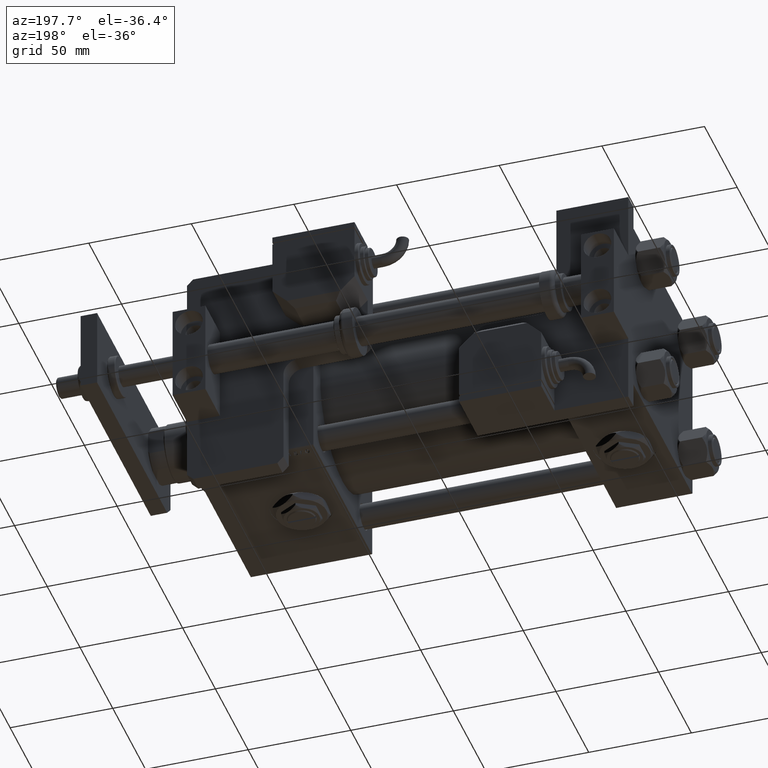
[diagram: clean part render]
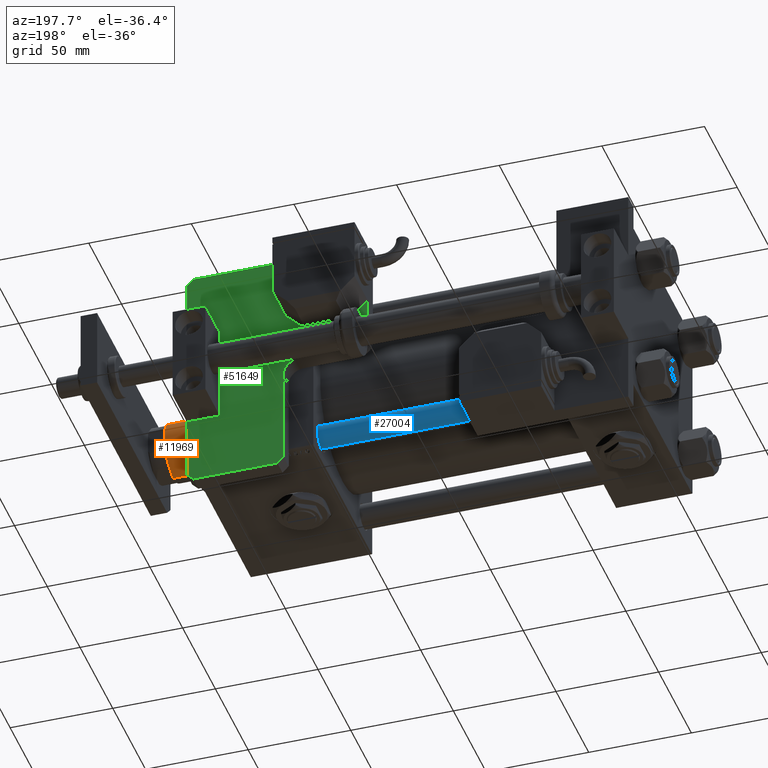
[diagram: same view with three faces highlighted in distinct colors, each labeled with its STEP entity id]
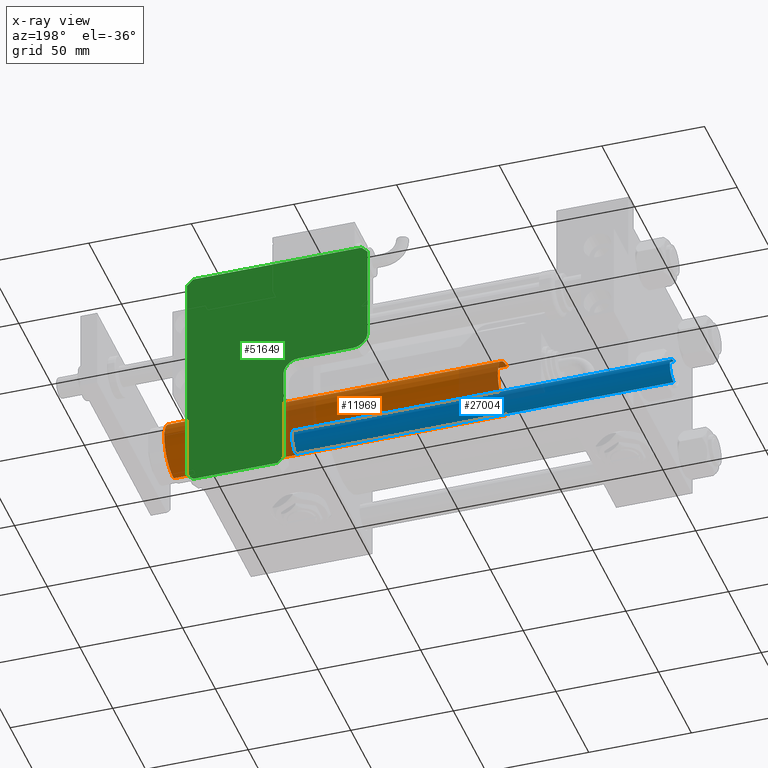
[diagram: x-ray of the same camera — body ghosted, the three highlighted faces saturated]
A machine part, auxiliary view with three faces highlighted in distinct colors.
The next image is the same camera in x-ray (body ghosted, the three faces saturated) — at least one of them is partly hidden behind the body in this view.
Their STEP definitions:

[orange] entity #11969 — the highlighted cylindrical surface (edge-blend (fillet) strip) has radius 14 mm, axis along (-1, 0, 0).
#1002 = CARTESIAN_POINT ( 'NONE',  ( 14.00000000000000000, 1.714505518806294638E-15, 39.00000000000000000 ) ) ;
#1418 = VERTEX_POINT ( 'NONE', #38723 ) ;
#7903 = DIRECTION ( 'NONE',  ( 1.000000000000000000, 0.000000000000000000, 0.000000000000000000 ) ) ;
#7947 = DIRECTION ( 'NONE',  ( -0.000000000000000000, -0.000000000000000000, -1.000000000000000000 ) ) ;
#8208 = VECTOR ( 'NONE', #11063, 1000.000000000000000 ) ;
#8893 = VECTOR ( 'NONE', #27337, 1000.000000000000000 ) ;
#11063 = DIRECTION ( 'NONE',  ( -0.000000000000000000, -0.000000000000000000, -1.000000000000000000 ) ) ;
#11219 = ORIENTED_EDGE ( 'NONE', *, *, #50561, .T. ) ;
#11969 = ADVANCED_FACE ( 'NONE', ( #15951 ), #33865, .T. ) ;
#14422 = CARTESIAN_POINT ( 'NONE',  ( 14.00000000000000000, 1.714505518806294638E-15, 202.0000000000000000 ) ) ;
#14473 = VERTEX_POINT ( 'NONE', #30945 ) ;
#15951 = FACE_OUTER_BOUND ( 'NONE', #50413, .T. ) ;
#18627 = DIRECTION ( 'NONE',  ( 1.000000000000000000, 0.000000000000000000, 0.000000000000000000 ) ) ;
#22952 = ORIENTED_EDGE ( 'NONE', *, *, #37506, .T. ) ;
#24837 = LINE ( 'NONE', #43321, #8208 ) ;
#25923 = VERTEX_POINT ( 'NONE', #1002 ) ;
#27337 = DIRECTION ( 'NONE',  ( -0.000000000000000000, -0.000000000000000000, -1.000000000000000000 ) ) ;
#27624 = LINE ( 'NONE', #14422, #8893 ) ;
#29927 = CARTESIAN_POINT ( 'NONE',  ( 0.000000000000000000, 0.000000000000000000, 39.00000000000000000 ) ) ;
#29997 = ORIENTED_EDGE ( 'NONE', *, *, #34548, .F. ) ;
#30414 = AXIS2_PLACEMENT_3D ( 'NONE', #57986, #40397, #18627 ) ;
#30945 = CARTESIAN_POINT ( 'NONE',  ( -14.00000000000000000, 0.000000000000000000, 39.00000000000000000 ) ) ;
#33865 = CYLINDRICAL_SURFACE ( 'NONE', #44735, 14.00000000000000000 ) ;
#34548 = EDGE_CURVE ( 'NONE', #41978, #25923, #27624, .T. ) ;
#36319 = CARTESIAN_POINT ( 'NONE',  ( 14.00000000000000000, 1.714505518806294638E-15, 201.5000000000000284 ) ) ;
#36989 = CIRCLE ( 'NONE', #30414, 14.00000000000000000 ) ;
#37506 = EDGE_CURVE ( 'NONE', #41978, #1418, #36989, .T. ) ;
#38723 = CARTESIAN_POINT ( 'NONE',  ( -14.00000000000000000, 0.000000000000000000, 201.5000000000000284 ) ) ;
#38860 = EDGE_CURVE ( 'NONE', #14473, #25923, #52040, .T. ) ;
#39357 = DIRECTION ( 'NONE',  ( -1.000000000000000000, 0.000000000000000000, 0.000000000000000000 ) ) ;
#40397 = DIRECTION ( 'NONE',  ( 0.000000000000000000, 0.000000000000000000, -1.000000000000000000 ) ) ;
#41873 = ORIENTED_EDGE ( 'NONE', *, *, #38860, .T. ) ;
#41978 = VERTEX_POINT ( 'NONE', #36319 ) ;
#42665 = AXIS2_PLACEMENT_3D ( 'NONE', #29927, #42853, #7903 ) ;
#42853 = DIRECTION ( 'NONE',  ( 0.000000000000000000, 0.000000000000000000, 1.000000000000000000 ) ) ;
#43321 = CARTESIAN_POINT ( 'NONE',  ( -14.00000000000000000, 0.000000000000000000, 202.0000000000000000 ) ) ;
#44735 = AXIS2_PLACEMENT_3D ( 'NONE', #48142, #7947, #39357 ) ;
#48142 = CARTESIAN_POINT ( 'NONE',  ( 0.000000000000000000, 0.000000000000000000, 202.0000000000000000 ) ) ;
#50413 = EDGE_LOOP ( 'NONE', ( #29997, #22952, #11219, #41873 ) ) ;
#50561 = EDGE_CURVE ( 'NONE', #1418, #14473, #24837, .T. ) ;
#52040 = CIRCLE ( 'NONE', #42665, 14.00000000000000000 ) ;
#57986 = CARTESIAN_POINT ( 'NONE',  ( 0.000000000000000000, 0.000000000000000000, 201.5000000000000284 ) ) ;

[blue] entity #27004 — the highlighted cylindrical surface (edge-blend (fillet) strip) has radius 6 mm, axis along (1, -0, -0).
#2108 = CARTESIAN_POINT ( 'NONE',  ( 0.000000000000000000, 0.000000000000000000, 185.0000000000000000 ) ) ;
#7085 = FACE_OUTER_BOUND ( 'NONE', #16296, .T. ) ;
#7306 = LINE ( 'NONE', #25476, #46665 ) ;
#8545 = CARTESIAN_POINT ( 'NONE',  ( 0.000000000000000000, 0.000000000000000000, 184.5000000000000000 ) ) ;
#14928 = CARTESIAN_POINT ( 'NONE',  ( 6.000000000000000888, 7.347880794884120722E-16, 184.5000000000000000 ) ) ;
#14997 = CARTESIAN_POINT ( 'NONE',  ( -6.000000000000000888, 0.000000000000000000, 0.5000000000000281997 ) ) ;
#15429 = EDGE_CURVE ( 'NONE', #47598, #19432, #40045, .T. ) ;
#16068 = ORIENTED_EDGE ( 'NONE', *, *, #44967, .F. ) ;
#16296 = EDGE_LOOP ( 'NONE', ( #44749, #25152, #37346, #16068 ) ) ;
#16631 = VERTEX_POINT ( 'NONE', #24294 ) ;
#18784 = LINE ( 'NONE', #36699, #45430 ) ;
#19432 = VERTEX_POINT ( 'NONE', #14928 ) ;
#22887 = DIRECTION ( 'NONE',  ( 1.000000000000000000, 0.000000000000000000, 0.000000000000000000 ) ) ;
#24294 = CARTESIAN_POINT ( 'NONE',  ( 6.000000000000000888, 7.347880794884120722E-16, 0.5000000000000281997 ) ) ;
#25152 = ORIENTED_EDGE ( 'NONE', *, *, #54179, .T. ) ;
#25476 = CARTESIAN_POINT ( 'NONE',  ( 6.000000000000000888, 7.347880794884120722E-16, 185.0000000000000000 ) ) ;
#26045 = DIRECTION ( 'NONE',  ( -0.000000000000000000, -0.000000000000000000, -1.000000000000000000 ) ) ;
#27004 = ADVANCED_FACE ( 'NONE', ( #7085 ), #33509, .T. ) ;
#29627 = EDGE_CURVE ( 'NONE', #16631, #48671, #44280, .T. ) ;
#31987 = DIRECTION ( 'NONE',  ( 0.000000000000000000, 0.000000000000000000, -1.000000000000000000 ) ) ;
#33509 = CYLINDRICAL_SURFACE ( 'NONE', #47894, 6.000000000000000888 ) ;
#33795 = DIRECTION ( 'NONE',  ( -1.000000000000000000, 0.000000000000000000, 0.000000000000000000 ) ) ;
#33997 = AXIS2_PLACEMENT_3D ( 'NONE', #53259, #56794, #47988 ) ;
#36699 = CARTESIAN_POINT ( 'NONE',  ( -6.000000000000000888, 0.000000000000000000, 185.0000000000000000 ) ) ;
#37346 = ORIENTED_EDGE ( 'NONE', *, *, #29627, .T. ) ;
#40045 = CIRCLE ( 'NONE', #49400, 6.000000000000000888 ) ;
#42827 = CARTESIAN_POINT ( 'NONE',  ( -6.000000000000000888, 0.000000000000000000, 184.5000000000000000 ) ) ;
#44280 = CIRCLE ( 'NONE', #33997, 6.000000000000000888 ) ;
#44749 = ORIENTED_EDGE ( 'NONE', *, *, #15429, .T. ) ;
#44967 = EDGE_CURVE ( 'NONE', #47598, #48671, #18784, .T. ) ;
#45430 = VECTOR ( 'NONE', #54597, 1000.000000000000000 ) ;
#46665 = VECTOR ( 'NONE', #26045, 1000.000000000000000 ) ;
#47598 = VERTEX_POINT ( 'NONE', #42827 ) ;
#47894 = AXIS2_PLACEMENT_3D ( 'NONE', #2108, #56666, #33795 ) ;
#47988 = DIRECTION ( 'NONE',  ( 1.000000000000000000, 0.000000000000000000, 0.000000000000000000 ) ) ;
#48671 = VERTEX_POINT ( 'NONE', #14997 ) ;
#49400 = AXIS2_PLACEMENT_3D ( 'NONE', #8545, #31987, #22887 ) ;
#53259 = CARTESIAN_POINT ( 'NONE',  ( 0.000000000000000000, 0.000000000000000000, 0.5000000000000281997 ) ) ;
#54179 = EDGE_CURVE ( 'NONE', #19432, #16631, #7306, .T. ) ;
#54597 = DIRECTION ( 'NONE',  ( -0.000000000000000000, -0.000000000000000000, -1.000000000000000000 ) ) ;
#56666 = DIRECTION ( 'NONE',  ( -0.000000000000000000, -0.000000000000000000, -1.000000000000000000 ) ) ;
#56794 = DIRECTION ( 'NONE',  ( -0.000000000000000000, -0.000000000000000000, 1.000000000000000000 ) ) ;

[green] entity #51649 — the highlighted planar face has unit normal (0, 1, 0).
#1150 = CARTESIAN_POINT ( 'NONE',  ( 3.000000000000002665, 88.00000000000000000, 8.000000000000000000 ) ) ;
#1599 = EDGE_CURVE ( 'NONE', #41694, #25712, #17824, .T. ) ;
#2186 = FACE_OUTER_BOUND ( 'NONE', #8730, .T. ) ;
#2268 = AXIS2_PLACEMENT_3D ( 'NONE', #51576, #24871, #42782 ) ;
#2396 = EDGE_CURVE ( 'NONE', #25712, #24167, #11799, .T. ) ;
#3154 = DIRECTION ( 'NONE',  ( 0.000000000000000000, -1.000000000000000000, 0.000000000000000000 ) ) ;
#3223 = ORIENTED_EDGE ( 'NONE', *, *, #49533, .T. ) ;
#3404 = CARTESIAN_POINT ( 'NONE',  ( 114.9999999999999858, 0.000000000000000000, 8.000000000000000000 ) ) ;
#3569 = ORIENTED_EDGE ( 'NONE', *, *, #45041, .T. ) ;
#3942 = ORIENTED_EDGE ( 'NONE', *, *, #48284, .T. ) ;
#4015 = CARTESIAN_POINT ( 'NONE',  ( 56.99999999999999289, 80.49999999999997158, 8.000000000000000000 ) ) ;
#4275 = VECTOR ( 'NONE', #14391, 1000.000000000000114 ) ;
#4278 = VERTEX_POINT ( 'NONE', #56370 ) ;
#5356 = VECTOR ( 'NONE', #10592, 1000.000000000000114 ) ;
#6315 = VERTEX_POINT ( 'NONE', #18909 ) ;
#7344 = AXIS2_PLACEMENT_3D ( 'NONE', #51770, #15966, #11574 ) ;
#7668 = ORIENTED_EDGE ( 'NONE', *, *, #32166, .T. ) ;
#8730 = EDGE_LOOP ( 'NONE', ( #24854, #9539, #3569, #9942, #7668, #11004, #34242, #41177, #3942, #3223, #25783, #25422 ) ) ;
#8744 = EDGE_CURVE ( 'NONE', #19118, #56921, #55475, .T. ) ;
#9066 = VERTEX_POINT ( 'NONE', #28938 ) ;
#9539 = ORIENTED_EDGE ( 'NONE', *, *, #2396, .T. ) ;
#9713 = DIRECTION ( 'NONE',  ( 0.7071067811865441310, -0.7071067811865507924, -0.000000000000000000 ) ) ;
#9942 = ORIENTED_EDGE ( 'NONE', *, *, #31426, .T. ) ;
#10008 = CARTESIAN_POINT ( 'NONE',  ( 1.500000000000001332, 1.499999999999987566, 8.000000000000000000 ) ) ;
#10018 = DIRECTION ( 'NONE',  ( 1.000000000000000000, 0.000000000000000000, 0.000000000000000000 ) ) ;
#10592 = DIRECTION ( 'NONE',  ( 0.7071067811865507924, 0.7071067811865441310, -0.000000000000000000 ) ) ;
#10904 = DIRECTION ( 'NONE',  ( -0.000000000000000000, 0.000000000000000000, -1.000000000000000000 ) ) ;
#11004 = ORIENTED_EDGE ( 'NONE', *, *, #8744, .T. ) ;
#11504 = DIRECTION ( 'NONE',  ( -0.7071067811865507924, -0.7071067811865441310, -0.000000000000000000 ) ) ;
#11574 = DIRECTION ( 'NONE',  ( 1.000000000000000000, 0.000000000000000000, -0.000000000000000000 ) ) ;
#11799 = LINE ( 'NONE', #33218, #37932 ) ;
#12141 = VERTEX_POINT ( 'NONE', #4015 ) ;
#12182 = CARTESIAN_POINT ( 'NONE',  ( 56.99999999999999289, 54.49999999999998579, 8.000000000000000000 ) ) ;
#12392 = EDGE_CURVE ( 'NONE', #52144, #12141, #36608, .T. ) ;
#12910 = VECTOR ( 'NONE', #18994, 1000.000000000000000 ) ;
#14391 = DIRECTION ( 'NONE',  ( -0.7071067811865441310, 0.7071067811865507924, -0.000000000000000000 ) ) ;
#14998 = CARTESIAN_POINT ( 'NONE',  ( 111.9999999999999858, 0.000000000000000000, 8.000000000000000000 ) ) ;
#15605 = CARTESIAN_POINT ( 'NONE',  ( 0.000000000000000000, 3.000000000000002665, 8.000000000000000000 ) ) ;
#15966 = DIRECTION ( 'NONE',  ( 0.000000000000000000, -0.000000000000000000, 1.000000000000000000 ) ) ;
#16850 = DIRECTION ( 'NONE',  ( 1.000000000000000000, 0.000000000000000000, 0.000000000000000000 ) ) ;
#17824 = LINE ( 'NONE', #35734, #41632 ) ;
#18815 = CARTESIAN_POINT ( 'NONE',  ( 64.50000000000000000, 54.49999999999998579, 8.000000000000000000 ) ) ;
#18909 = CARTESIAN_POINT ( 'NONE',  ( 114.9999999999999858, 43.99999999999998579, 8.000000000000000000 ) ) ;
#18994 = DIRECTION ( 'NONE',  ( 0.000000000000000000, 1.000000000000000000, 0.000000000000000000 ) ) ;
#19118 = VERTEX_POINT ( 'NONE', #14998 ) ;
#23489 = CARTESIAN_POINT ( 'NONE',  ( 55.99999999999947420, -55.99999999999999289, 8.000000000000000000 ) ) ;
#24167 = VERTEX_POINT ( 'NONE', #30639 ) ;
#24854 = ORIENTED_EDGE ( 'NONE', *, *, #1599, .T. ) ;
#24871 = DIRECTION ( 'NONE',  ( 0.000000000000000000, -0.000000000000000000, 1.000000000000000000 ) ) ;
#25422 = ORIENTED_EDGE ( 'NONE', *, *, #43944, .T. ) ;
#25712 = VERTEX_POINT ( 'NONE', #1150 ) ;
#25783 = ORIENTED_EDGE ( 'NONE', *, *, #12392, .T. ) ;
#25959 = AXIS2_PLACEMENT_3D ( 'NONE', #18815, #10904, #10018 ) ;
#26285 = LINE ( 'NONE', #3404, #42952 ) ;
#27429 = VECTOR ( 'NONE', #9713, 1000.000000000000114 ) ;
#28896 = PLANE ( 'NONE',  #7344 ) ;
#28938 = CARTESIAN_POINT ( 'NONE',  ( 112.0000000000000142, 46.99999999999998579, 8.000000000000000000 ) ) ;
#30352 = LINE ( 'NONE', #31222, #39692 ) ;
#30639 = CARTESIAN_POINT ( 'NONE',  ( 0.000000000000000000, 85.00000000000001421, 8.000000000000000000 ) ) ;
#31222 = CARTESIAN_POINT ( 'NONE',  ( 0.000000000000000000, 0.000000000000000000, 8.000000000000000000 ) ) ;
#31412 = CARTESIAN_POINT ( 'NONE',  ( 49.49999999999999289, 88.00000000000000000, 8.000000000000000000 ) ) ;
#31426 = EDGE_CURVE ( 'NONE', #55788, #42741, #54906, .T. ) ;
#32166 = EDGE_CURVE ( 'NONE', #42741, #19118, #30352, .T. ) ;
#32807 = CARTESIAN_POINT ( 'NONE',  ( 56.99999999999999289, 46.99999999999998579, 8.000000000000000000 ) ) ;
#33218 = CARTESIAN_POINT ( 'NONE',  ( -42.50000000000000711, 42.50000000000040501, 8.000000000000000000 ) ) ;
#34242 = ORIENTED_EDGE ( 'NONE', *, *, #51437, .T. ) ;
#35734 = CARTESIAN_POINT ( 'NONE',  ( 56.99999999999999289, 88.00000000000000000, 8.000000000000000000 ) ) ;
#36608 = LINE ( 'NONE', #32807, #12910 ) ;
#36702 = LINE ( 'NONE', #54600, #4275 ) ;
#37165 = VECTOR ( 'NONE', #45760, 1000.000000000000000 ) ;
#37932 = VECTOR ( 'NONE', #11504, 1000.000000000000114 ) ;
#39692 = VECTOR ( 'NONE', #16850, 1000.000000000000000 ) ;
#39800 = DIRECTION ( 'NONE',  ( 0.000000000000000000, 1.000000000000000000, 0.000000000000000000 ) ) ;
#39813 = EDGE_CURVE ( 'NONE', #6315, #9066, #36702, .T. ) ;
#40447 = DIRECTION ( 'NONE',  ( -1.000000000000000000, 0.000000000000000000, 0.000000000000000000 ) ) ;
#41177 = ORIENTED_EDGE ( 'NONE', *, *, #39813, .T. ) ;
#41632 = VECTOR ( 'NONE', #40447, 1000.000000000000000 ) ;
#41694 = VERTEX_POINT ( 'NONE', #31412 ) ;
#41912 = CIRCLE ( 'NONE', #25959, 7.500000000000007105 ) ;
#42741 = VERTEX_POINT ( 'NONE', #49540 ) ;
#42782 = DIRECTION ( 'NONE',  ( 1.000000000000000000, 0.000000000000000000, 0.000000000000000000 ) ) ;
#42952 = VECTOR ( 'NONE', #39800, 1000.000000000000000 ) ;
#43944 = EDGE_CURVE ( 'NONE', #12141, #41694, #51031, .T. ) ;
#44049 = CARTESIAN_POINT ( 'NONE',  ( 114.9999999999999858, 2.999999999999975131, 8.000000000000000000 ) ) ;
#45041 = EDGE_CURVE ( 'NONE', #24167, #55788, #56563, .T. ) ;
#45464 = CARTESIAN_POINT ( 'NONE',  ( 114.9999999999999858, 46.99999999999998579, 8.000000000000000000 ) ) ;
#45760 = DIRECTION ( 'NONE',  ( -1.000000000000000000, 0.000000000000000000, 0.000000000000000000 ) ) ;
#48284 = EDGE_CURVE ( 'NONE', #9066, #4278, #55153, .T. ) ;
#49533 = EDGE_CURVE ( 'NONE', #4278, #52144, #41912, .T. ) ;
#49540 = CARTESIAN_POINT ( 'NONE',  ( 2.999999999999975131, 0.000000000000000000, 8.000000000000000000 ) ) ;
#51031 = CIRCLE ( 'NONE', #2268, 7.500000000000000000 ) ;
#51437 = EDGE_CURVE ( 'NONE', #56921, #6315, #26285, .T. ) ;
#51576 = CARTESIAN_POINT ( 'NONE',  ( 49.49999999999999289, 80.49999999999998579, 8.000000000000000000 ) ) ;
#51649 = ADVANCED_FACE ( 'NONE', ( #2186 ), #28896, .T. ) ;
#51770 = CARTESIAN_POINT ( 'NONE',  ( 0.000000000000000000, 0.000000000000000000, 8.000000000000000000 ) ) ;
#52144 = VERTEX_POINT ( 'NONE', #12182 ) ;
#54600 = CARTESIAN_POINT ( 'NONE',  ( 79.50000000000051159, 79.49999999999977263, 8.000000000000000000 ) ) ;
#54906 = LINE ( 'NONE', #10008, #27429 ) ;
#55153 = LINE ( 'NONE', #45464, #37165 ) ;
#55475 = LINE ( 'NONE', #23489, #5356 ) ;
#55788 = VERTEX_POINT ( 'NONE', #15605 ) ;
#56370 = CARTESIAN_POINT ( 'NONE',  ( 64.50000000000000000, 46.99999999999998579, 8.000000000000000000 ) ) ;
#56563 = LINE ( 'NONE', #57714, #57588 ) ;
#56921 = VERTEX_POINT ( 'NONE', #44049 ) ;
#57588 = VECTOR ( 'NONE', #3154, 1000.000000000000000 ) ;
#57714 = CARTESIAN_POINT ( 'NONE',  ( 0.000000000000000000, 88.00000000000000000, 8.000000000000000000 ) ) ;